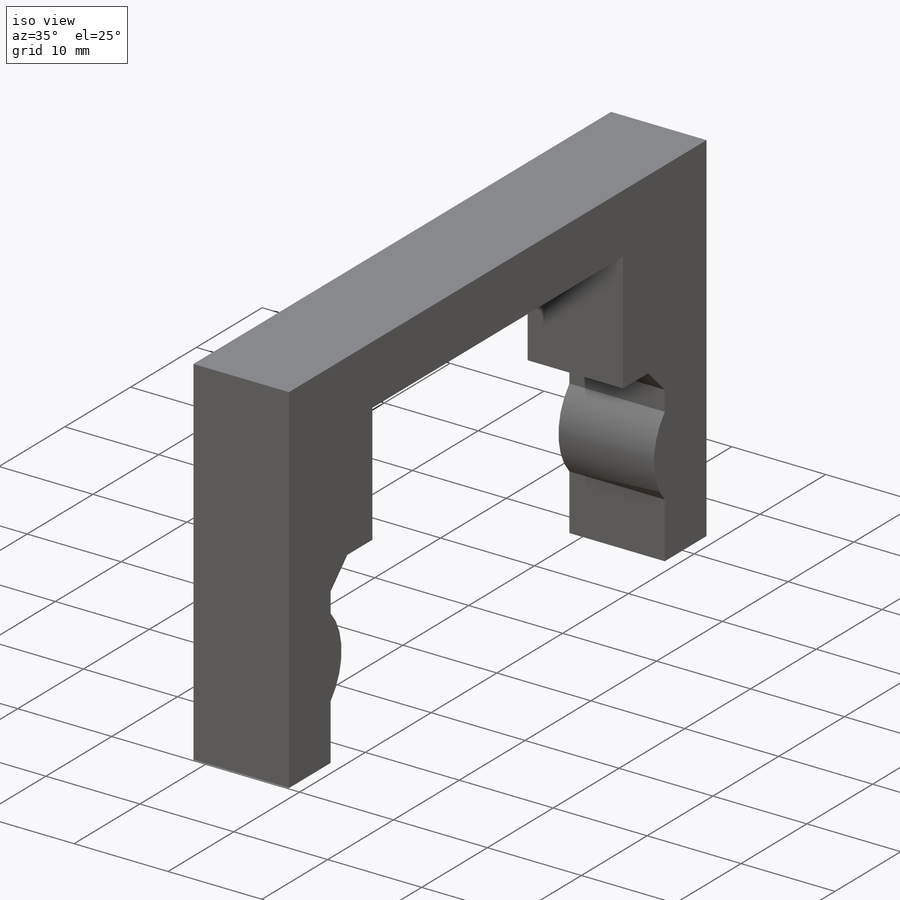
[diagram: iso view]
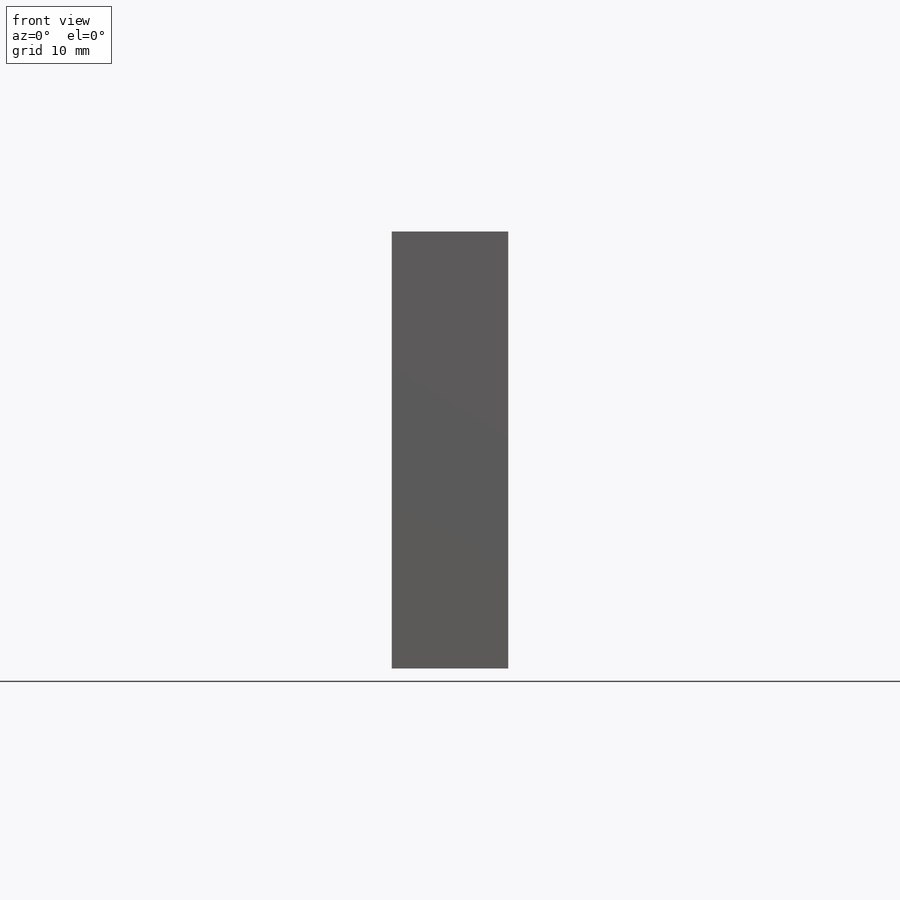
[diagram: front view]
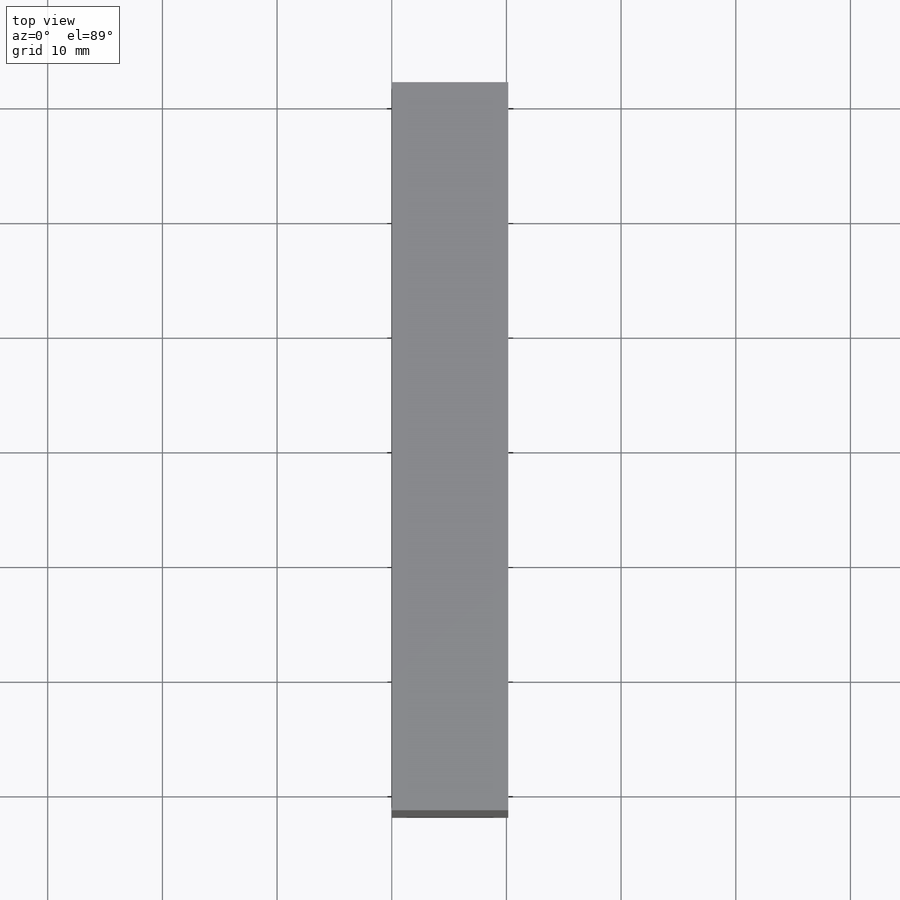
[diagram: top view]
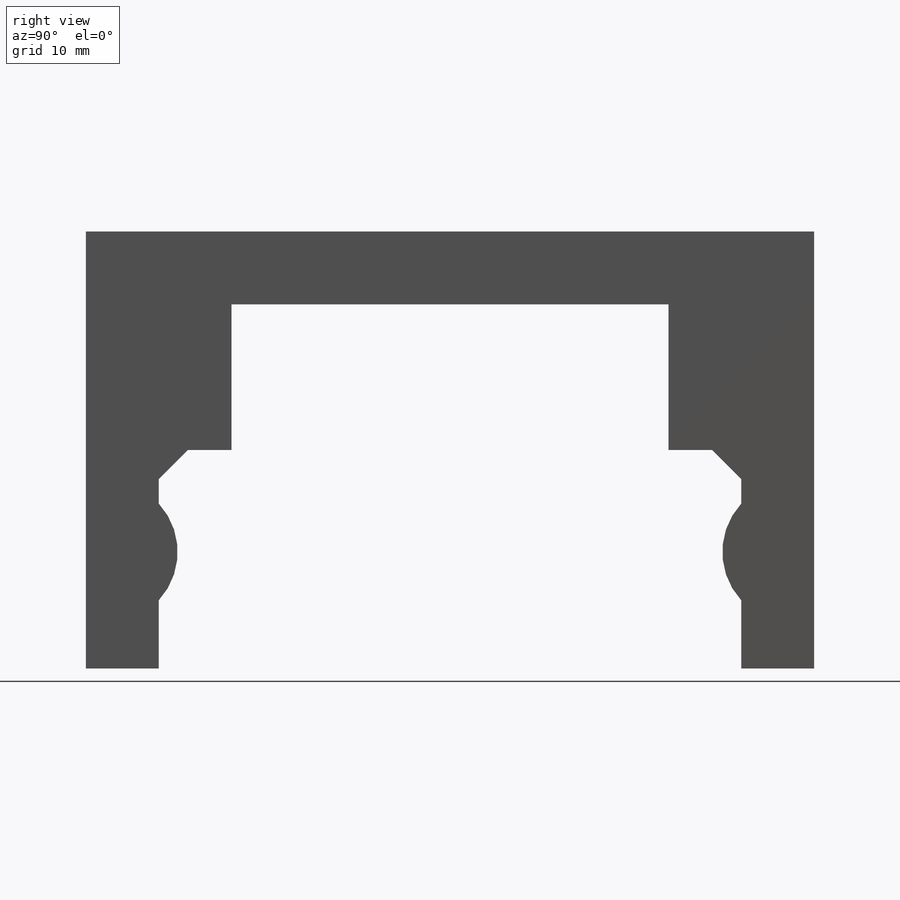
[diagram: right view]
SOLIDWORKS PART (.sldprt)
format: sldprt  version: not decoded by parser v0  size: 173,056 bytes
history: native  units: mm
features: sketch x2, extrude x2, material x1, chamfer x1 (+11 scaffold rows collapsed)
feature tree (17):
  scaffold x11  (default folders/planes/origin — collapsed)
  material  "Material <not specified>"
  sketch  "Sketch3"  dims[D1=6.35mm D2=6.35mm D3=6.35mm D4=6.35mm D5=12.7mm D6=6.35mm D7=50.8mm D8=12.7mm D9=38.1mm D10=38.1mm D11=50.8mm]
  extrude  "Boss-Extrude1"  Depth=10.16mm
  sketch  "Sketch4"  dims[D3=12.446mm D4=12.446mm D1=8.89mm D2=8.89mm D5=4.572mm D6=4.572mm]
  extrude  "Boss-Extrude2"  Depth=10.16mm
  chamfer  "Chamfer1"  Distance=2.54mm Angle=45deg
decode coverage: 5 of 5 modeling features carry decoded parameters
note: suppression state not decoded; provenance and decode notes live in map.json
